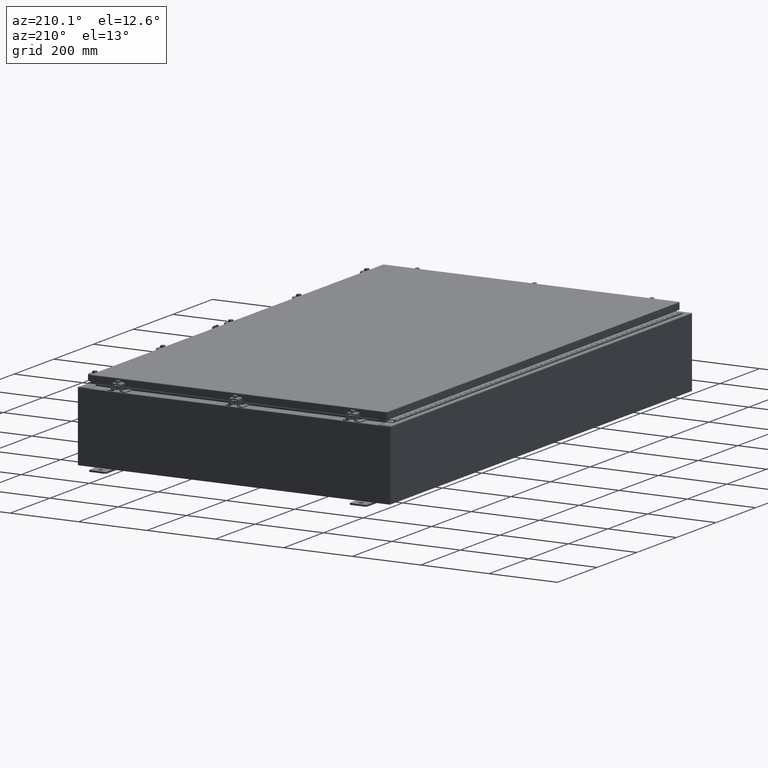
[diagram: clean part render]
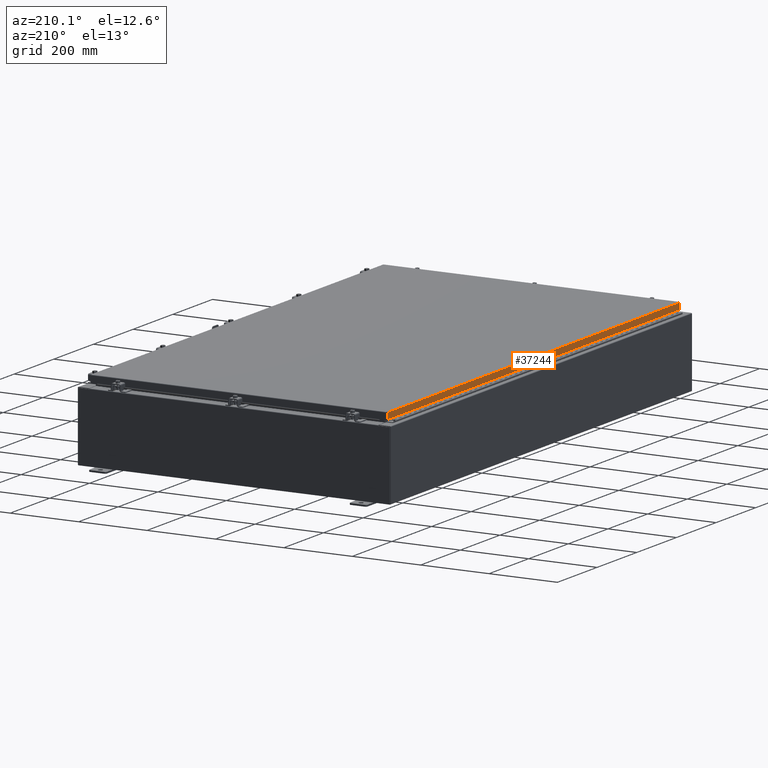
[diagram: same view with one face highlighted and labeled with its STEP entity id]
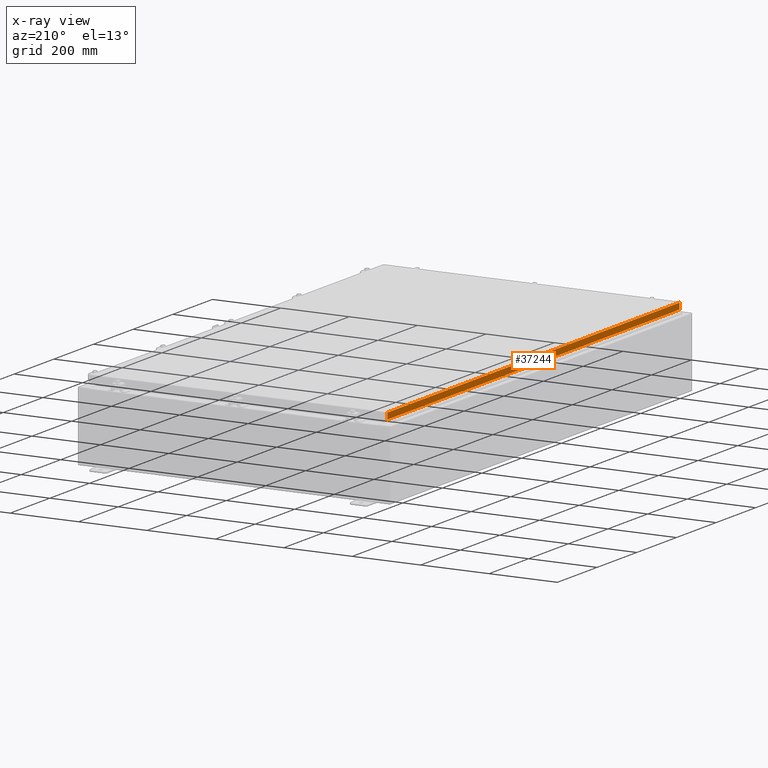
[diagram: x-ray of the same camera — body ghosted, the highlighted face saturated]
A machine part, auxiliary view. The second image highlights one B-rep face of the part: STEP entity #37244.
The next image is the same camera in x-ray: the body ghosted, the highlighted face saturated — about 0% of this face is hidden behind the body in this view.
In plain terms, the highlighted planar face has unit normal (1, -0, -0).
Its self-contained STEP definition (entity closure, byte-faithful):
#1933 = CARTESIAN_POINT ( 'NONE',  ( -17.07799999999999600, 29.00515786437626500, -0.7949999999999930500 ) ) ;
#2180 = LINE ( 'NONE', #2668, #27149 ) ;
#2364 = DIRECTION ( 'NONE',  ( 1.000000000000000000, -7.511783855542035400E-017, -3.034122441942816500E-015 ) ) ;
#2668 = CARTESIAN_POINT ( 'NONE',  ( -17.07799999999999900, -29.09400000000000100, -0.08770000000000026400 ) ) ;
#3193 = FACE_OUTER_BOUND ( 'NONE', #55428, .T. ) ;
#3421 = VERTEX_POINT ( 'NONE', #1933 ) ;
#8730 = LINE ( 'NONE', #51271, #33624 ) ;
#9890 = ORIENTED_EDGE ( 'NONE', *, *, #18264, .F. ) ;
#9995 = LINE ( 'NONE', #16911, #11580 ) ;
#11580 = VECTOR ( 'NONE', #11877, 39.37007874015748100 ) ;
#11877 = DIRECTION ( 'NONE',  ( -3.034122441942816100E-015, 6.982962677686265900E-015, -1.000000000000000000 ) ) ;
#15770 = VERTEX_POINT ( 'NONE', #59911 ) ;
#16863 = ORIENTED_EDGE ( 'NONE', *, *, #43523, .F. ) ;
#16911 = CARTESIAN_POINT ( 'NONE',  ( -17.07799999999999900, -29.00515786437626500, -0.07470000000000015500 ) ) ;
#17793 = DIRECTION ( 'NONE',  ( -7.511783855542057500E-017, -1.000000000000000000, -7.511783855542072300E-017 ) ) ;
#18104 = ORIENTED_EDGE ( 'NONE', *, *, #32984, .T. ) ;
#18264 = EDGE_CURVE ( 'NONE', #23994, #39126, #9995, .T. ) ;
#19157 = CARTESIAN_POINT ( 'NONE',  ( -17.07799999999999900, -29.00515786437626500, -0.08769999999999808500 ) ) ;
#21764 = CARTESIAN_POINT ( 'NONE',  ( -17.07800000000000300, -29.00515786437626200, -0.7949999999999996000 ) ) ;
#23994 = VERTEX_POINT ( 'NONE', #19157 ) ;
#24465 = EDGE_CURVE ( 'NONE', #15770, #23994, #2180, .T. ) ;
#27149 = VECTOR ( 'NONE', #17793, 39.37007874015748100 ) ;
#29661 = LINE ( 'NONE', #37234, #42875 ) ;
#31327 = CARTESIAN_POINT ( 'NONE',  ( -17.07799999999999600, 1.282862446741196100E-015, 5.245148147835385400E-014 ) ) ;
#32984 = EDGE_CURVE ( 'NONE', #15770, #3421, #29661, .T. ) ;
#33624 = VECTOR ( 'NONE', #56283, 39.37007874015748100 ) ;
#37214 = DIRECTION ( 'NONE',  ( -3.034122441942816500E-015, 0.0000000000000000000, -1.000000000000000000 ) ) ;
#37234 = CARTESIAN_POINT ( 'NONE',  ( -17.07799999999999600, 29.00515786437626500, 2.546082330095093400E-013 ) ) ;
#37244 = ADVANCED_FACE ( 'NONE', ( #3193 ), #61123, .F. ) ;
#39126 = VERTEX_POINT ( 'NONE', #21764 ) ;
#42875 = VECTOR ( 'NONE', #57009, 39.37007874015748100 ) ;
#43523 = EDGE_CURVE ( 'NONE', #39126, #3421, #8730, .T. ) ;
#46720 = ORIENTED_EDGE ( 'NONE', *, *, #24465, .F. ) ;
#51271 = CARTESIAN_POINT ( 'NONE',  ( -17.07800000000000300, -29.09400000000000100, -0.7949999999999996000 ) ) ;
#54524 = AXIS2_PLACEMENT_3D ( 'NONE', #31327, #2364, #37214 ) ;
#55428 = EDGE_LOOP ( 'NONE', ( #46720, #18104, #16863, #9890 ) ) ;
#56283 = DIRECTION ( 'NONE',  ( 7.511783855542072300E-017, 1.000000000000000000, 1.220664876525586700E-016 ) ) ;
#57009 = DIRECTION ( 'NONE',  ( -3.034122441942816100E-015, 6.982962677686265900E-015, -1.000000000000000000 ) ) ;
#59911 = CARTESIAN_POINT ( 'NONE',  ( -17.07799999999999600, 29.00515786437626500, -0.08769999999999589200 ) ) ;
#61123 = PLANE ( 'NONE',  #54524 ) ;